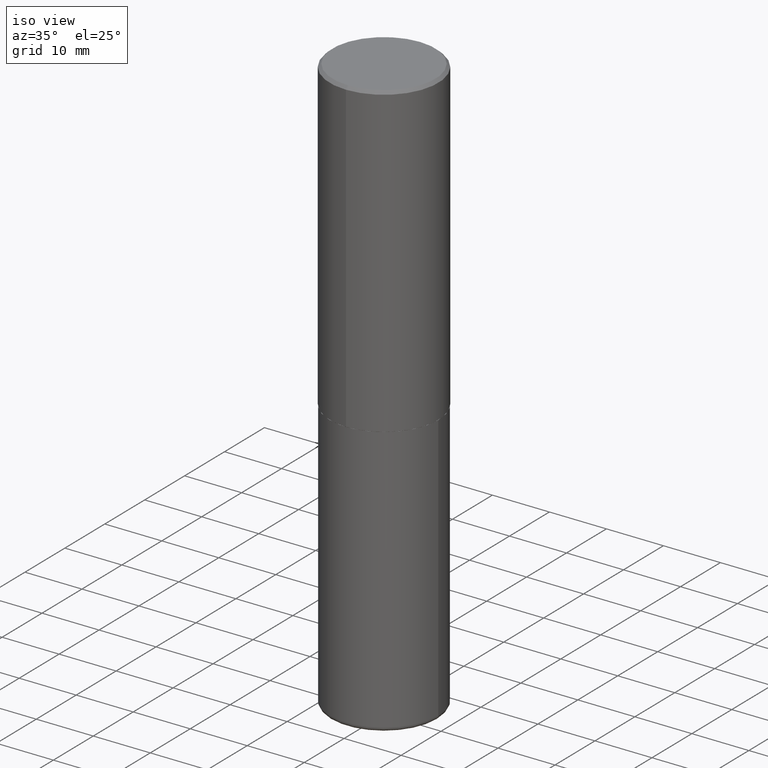
[diagram: clean part render]
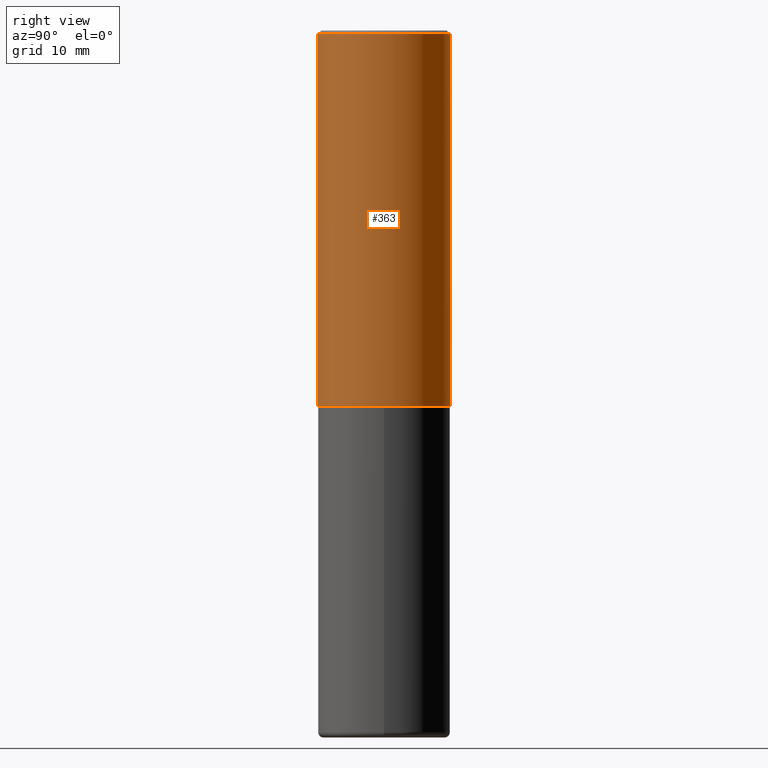
[diagram: tour spotlight — one face highlighted and labeled with its STEP entity id]
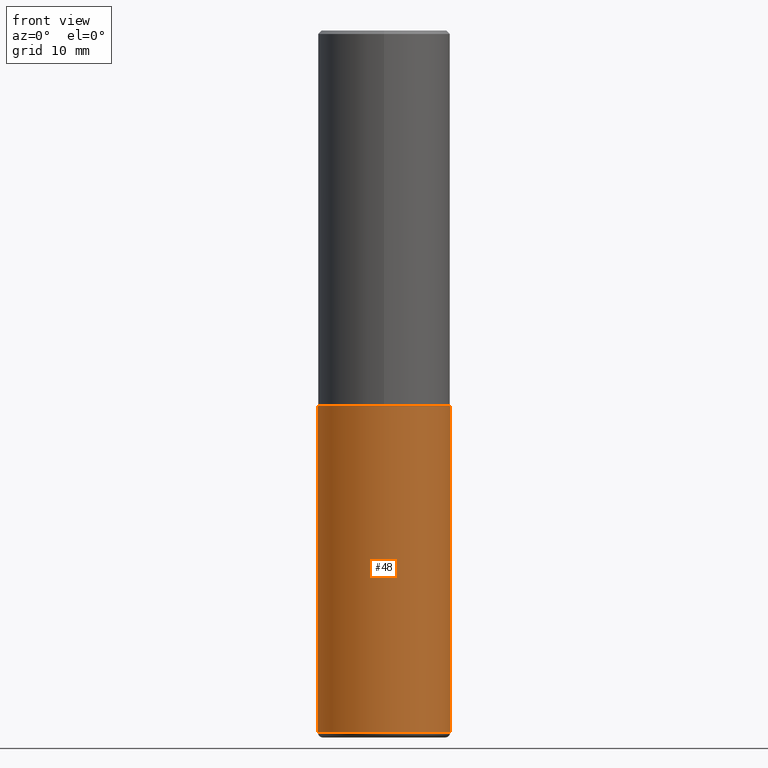
[diagram: tour spotlight — one face highlighted and labeled with its STEP entity id]
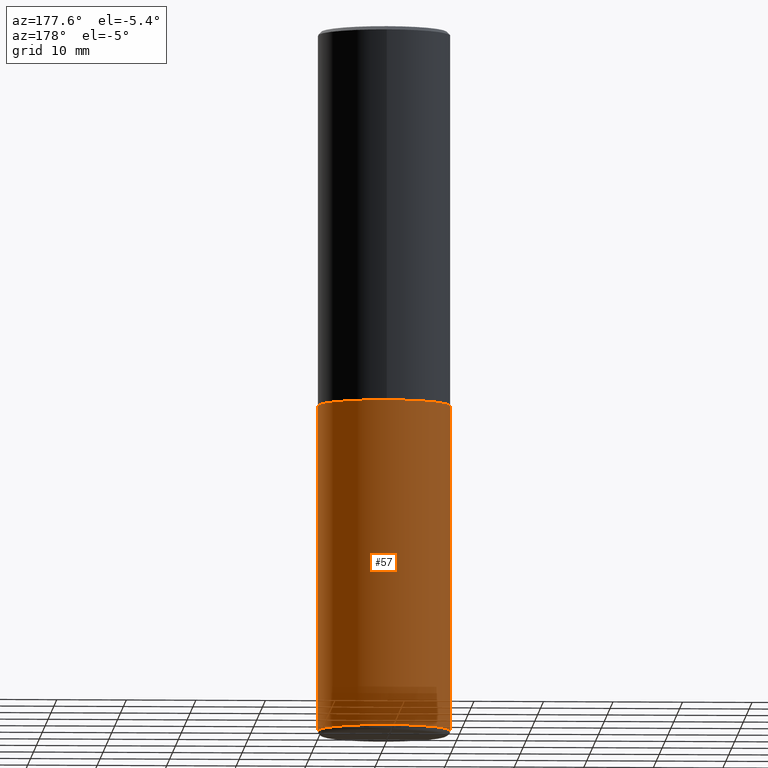
[diagram: tour spotlight — one face highlighted and labeled with its STEP entity id]
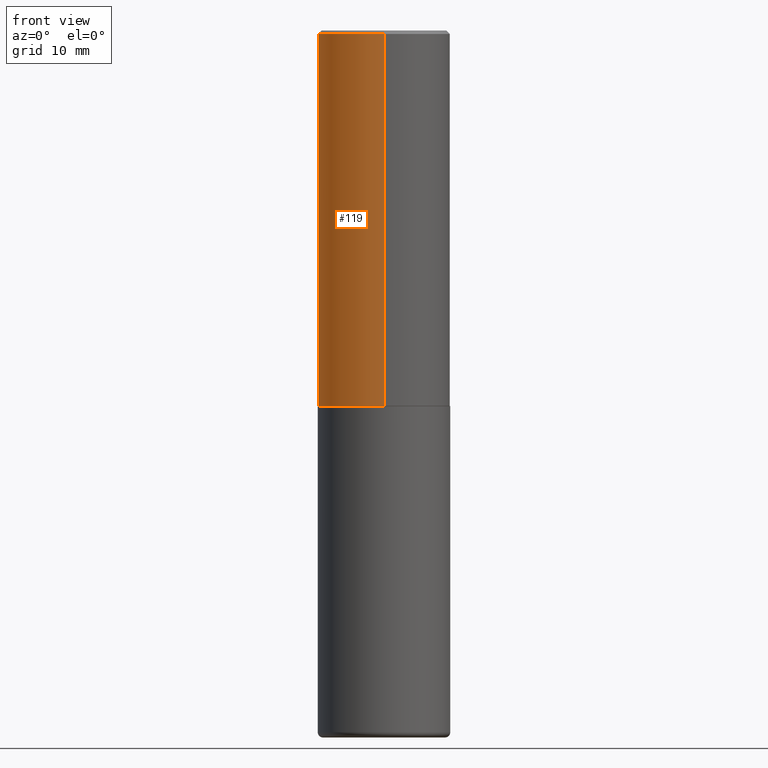
[diagram: tour spotlight — one face highlighted and labeled with its STEP entity id]
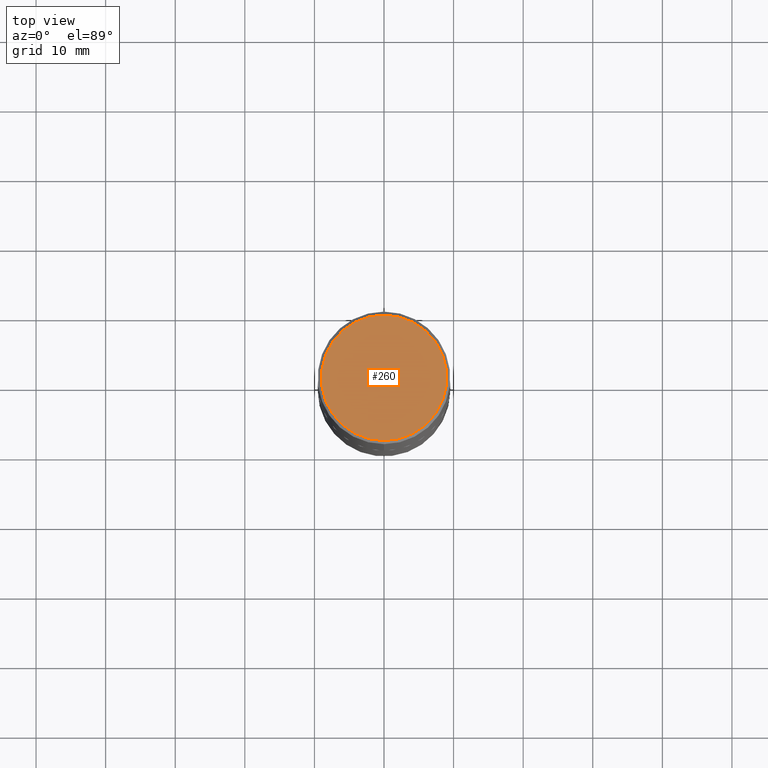
[diagram: tour spotlight — one face highlighted and labeled with its STEP entity id]
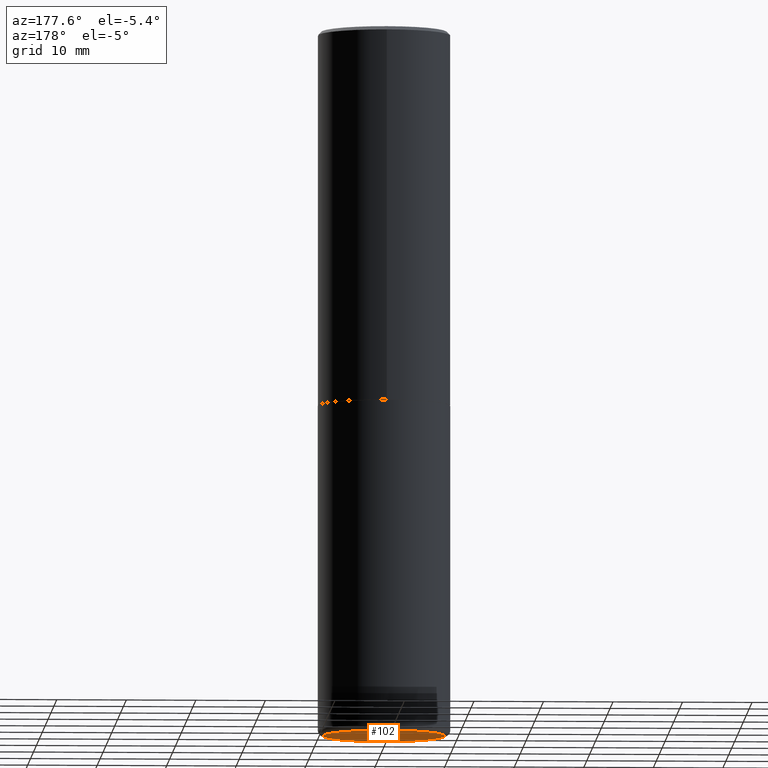
[diagram: tour spotlight — one face highlighted and labeled with its STEP entity id]
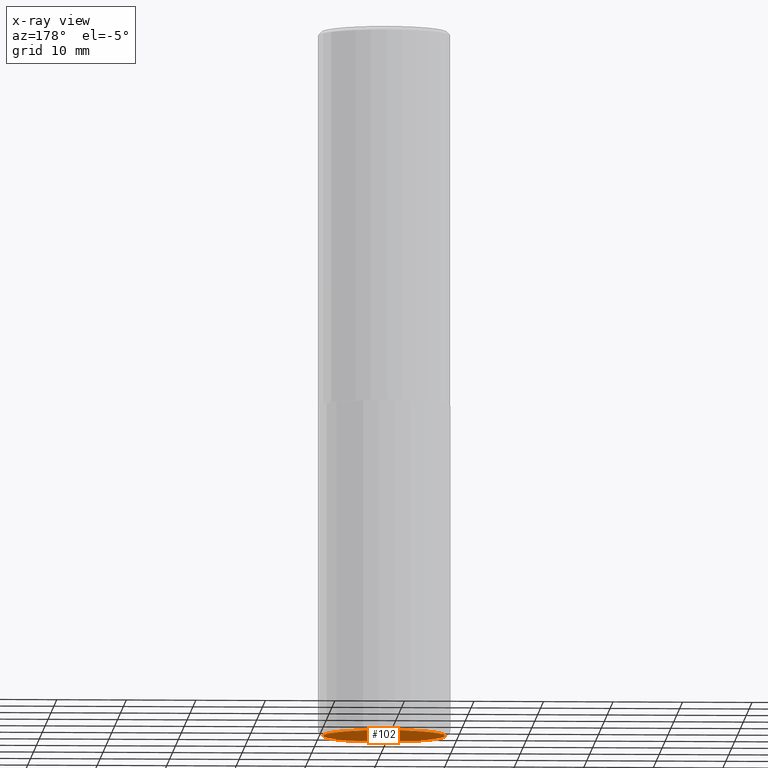
[diagram: x-ray of the same camera — body ghosted, this tour face saturated]
A machine part: a face-by-face anatomy tour. The part has 14 B-rep faces; the first image is the clean iso view, then the 6 largest visible faces are spotlighted one at a time (largest first), each with its STEP entity span.

Face 1 — right view, entity #363. In plain terms, the highlighted cylindrical surface (partial cylindrical patch) has radius 9.525 mm, axis along (-0, 0, 1).
Definition (entity closure, byte-faithful):
#6 = CYLINDRICAL_SURFACE ( 'NONE', #355, 0.3750000000000001665 ) ;
#18 = CIRCLE ( 'NONE', #131, 0.3750000000000000555 ) ;
#32 = DIRECTION ( 'NONE',  ( -6.982962677686266711E-15, -1.000000000000000000, 3.642463991552348591E-15 ) ) ;
#33 = DIRECTION ( 'NONE',  ( -2.444599841513017620E-29, 3.492725745712017802E-15, 1.000000000000000000 ) ) ;
#55 = DIRECTION ( 'NONE',  ( -2.444599841513017620E-29, 3.492725745712017802E-15, 1.000000000000000000 ) ) ;
#60 = CARTESIAN_POINT ( 'NONE',  ( 0.000000000000000000, 0.000000000000000000, 0.000000000000000000 ) ) ;
#71 = VERTEX_POINT ( 'NONE', #228 ) ;
#77 = ORIENTED_EDGE ( 'NONE', *, *, #303, .T. ) ;
#79 = CARTESIAN_POINT ( 'NONE',  ( 4.889199683026055945E-31, -6.985451491424065481E-17, -0.02000000000000008715 ) ) ;
#97 = DIRECTION ( 'NONE',  ( -2.444599841513017620E-29, 3.492725745712018196E-15, 1.000000000000000000 ) ) ;
#106 = AXIS2_PLACEMENT_3D ( 'NONE', #327, #135, #32 ) ;
#130 = LINE ( 'NONE', #164, #324 ) ;
#131 = AXIS2_PLACEMENT_3D ( 'NONE', #79, #55, #190 ) ;
#133 = LINE ( 'NONE', #264, #288 ) ;
#135 = DIRECTION ( 'NONE',  ( -2.444599841513017620E-29, 3.492725745712017802E-15, 1.000000000000000000 ) ) ;
#142 = ORIENTED_EDGE ( 'NONE', *, *, #205, .F. ) ;
#157 = ORIENTED_EDGE ( 'NONE', *, *, #270, .F. ) ;
#164 = CARTESIAN_POINT ( 'NONE',  ( 2.664535259100376486E-15, 0.3750000000000001665, -1.309772154642007415E-15 ) ) ;
#190 = DIRECTION ( 'NONE',  ( -6.982962677686265922E-15, -1.000000000000000000, 3.494488891895536035E-15 ) ) ;
#191 = CIRCLE ( 'NONE', #106, 0.3750000000000002776 ) ;
#202 = FACE_OUTER_BOUND ( 'NONE', #341, .T. ) ;
#205 = EDGE_CURVE ( 'NONE', #71, #251, #18, .T. ) ;
#228 = CARTESIAN_POINT ( 'NONE',  ( -2.572686749164323547E-15, -0.3750000000000001110, -0.01999999999999877570 ) ) ;
#233 = DIRECTION ( 'NONE',  ( -6.982962677686266711E-15, -1.000000000000000000, 3.492725745712018196E-15 ) ) ;
#234 = CARTESIAN_POINT ( 'NONE',  ( 2.618611004132350411E-15, 0.3749999999999999445, -0.02000000000000139513 ) ) ;
#246 = EDGE_CURVE ( 'NONE', #399, #251, #130, .T. ) ;
#251 = VERTEX_POINT ( 'NONE', #234 ) ;
#264 = CARTESIAN_POINT ( 'NONE',  ( -2.618611004132351200E-15, -0.3750000000000001665, 1.309772154642007415E-15 ) ) ;
#270 = EDGE_CURVE ( 'NONE', #280, #71, #133, .T. ) ;
#280 = VERTEX_POINT ( 'NONE', #297 ) ;
#288 = VECTOR ( 'NONE', #293, 39.37007874015748143 ) ;
#293 = DIRECTION ( 'NONE',  ( -2.444599841513017620E-29, 3.492725745712018196E-15, 1.000000000000000000 ) ) ;
#297 = CARTESIAN_POINT ( 'NONE',  ( -2.618611004132299924E-15, -0.3750000000000077716, -2.123999999999998334 ) ) ;
#303 = EDGE_CURVE ( 'NONE', #280, #399, #191, .T. ) ;
#306 = CARTESIAN_POINT ( 'NONE',  ( 2.664535259100402913E-15, 0.3749999999999928391, -2.124000000000000998 ) ) ;
#310 = ORIENTED_EDGE ( 'NONE', *, *, #246, .T. ) ;
#324 = VECTOR ( 'NONE', #97, 39.37007874015748143 ) ;
#327 = CARTESIAN_POINT ( 'NONE',  ( 5.192330063373648592E-29, -7.418549483892325607E-15, -2.123999999999999666 ) ) ;
#341 = EDGE_LOOP ( 'NONE', ( #77, #310, #142, #157 ) ) ;
#355 = AXIS2_PLACEMENT_3D ( 'NONE', #60, #33, #233 ) ;
#363 = ADVANCED_FACE ( 'NONE', ( #202 ), #6, .T. ) ;
#399 = VERTEX_POINT ( 'NONE', #306 ) ;

Face 2 — front view, entity #48. In plain terms, the highlighted cylindrical surface (partial cylindrical patch) has radius 9.525 mm, axis along (-0, 0, 1).
Definition (entity closure, byte-faithful):
#7 = CARTESIAN_POINT ( 'NONE',  ( -0.3749999999999999445, -1.119664565610691011E-14, -3.970000000000000195 ) ) ;
#48 = ADVANCED_FACE ( 'NONE', ( #84 ), #61, .T. ) ;
#53 = AXIS2_PLACEMENT_3D ( 'NONE', #278, #86, #76 ) ;
#58 = DIRECTION ( 'NONE',  ( -2.445468806185136597E-29, 3.491481338843145583E-15, 1.000000000000000000 ) ) ;
#59 = CARTESIAN_POINT ( 'NONE',  ( 0.3750000000000000555, -1.003800884917403364E-14, -2.125000000000000000 ) ) ;
#61 = CYLINDRICAL_SURFACE ( 'NONE', #138, 0.3750000000000000555 ) ;
#76 = DIRECTION ( 'NONE',  ( 1.000000000000000000, -6.982962677686266711E-15, 0.000000000000000000 ) ) ;
#78 = DIRECTION ( 'NONE',  ( -2.445468806185136597E-29, 3.491481338843145583E-15, 1.000000000000000000 ) ) ;
#84 = FACE_OUTER_BOUND ( 'NONE', #339, .T. ) ;
#85 = VECTOR ( 'NONE', #335, 39.37007874015748143 ) ;
#86 = DIRECTION ( 'NONE',  ( -2.445468806185136597E-29, 3.491481338843145583E-15, 1.000000000000000000 ) ) ;
#91 = AXIS2_PLACEMENT_3D ( 'NONE', #213, #78, #110 ) ;
#110 = DIRECTION ( 'NONE',  ( 1.000000000000000000, -6.982962677686266711E-15, 0.000000000000000000 ) ) ;
#138 = AXIS2_PLACEMENT_3D ( 'NONE', #320, #58, #165 ) ;
#153 = VERTEX_POINT ( 'NONE', #323 ) ;
#156 = ORIENTED_EDGE ( 'NONE', *, *, #336, .F. ) ;
#165 = DIRECTION ( 'NONE',  ( 1.000000000000000000, -6.982962677686265922E-15, 4.876176775795935793E-29 ) ) ;
#169 = VERTEX_POINT ( 'NONE', #408 ) ;
#176 = ORIENTED_EDGE ( 'NONE', *, *, #377, .T. ) ;
#189 = EDGE_CURVE ( 'NONE', #279, #169, #268, .T. ) ;
#197 = CARTESIAN_POINT ( 'NONE',  ( -0.3750000000000000555, 2.664535259100376091E-15, -1.844600658845589598E-29 ) ) ;
#213 = CARTESIAN_POINT ( 'NONE',  ( 5.196621213143415268E-29, -7.419397845041683624E-15, -2.125000000000000000 ) ) ;
#239 = ORIENTED_EDGE ( 'NONE', *, *, #189, .T. ) ;
#268 = CIRCLE ( 'NONE', #53, 0.3750000000000000555 ) ;
#278 = CARTESIAN_POINT ( 'NONE',  ( 9.708511160554992872E-29, -1.386118091520728738E-14, -3.970000000000000195 ) ) ;
#279 = VERTEX_POINT ( 'NONE', #7 ) ;
#282 = CIRCLE ( 'NONE', #91, 0.3750000000000000555 ) ;
#300 = CARTESIAN_POINT ( 'NONE',  ( 0.3750000000000000555, -2.618611004132350016E-15, 1.828566290923476203E-29 ) ) ;
#318 = VERTEX_POINT ( 'NONE', #59 ) ;
#320 = CARTESIAN_POINT ( 'NONE',  ( 0.000000000000000000, 0.000000000000000000, 0.000000000000000000 ) ) ;
#323 = CARTESIAN_POINT ( 'NONE',  ( -0.3750000000000000555, -7.975754121024110595E-15, -2.125000000000000000 ) ) ;
#328 = DIRECTION ( 'NONE',  ( -2.445468806185136877E-29, 3.491481338843145188E-15, 1.000000000000000000 ) ) ;
#335 = DIRECTION ( 'NONE',  ( -2.445468806185136877E-29, 3.491481338843145188E-15, 1.000000000000000000 ) ) ;
#336 = EDGE_CURVE ( 'NONE', #279, #153, #357, .T. ) ;
#339 = EDGE_LOOP ( 'NONE', ( #156, #239, #176, #410 ) ) ;
#357 = LINE ( 'NONE', #197, #395 ) ;
#359 = LINE ( 'NONE', #300, #85 ) ;
#377 = EDGE_CURVE ( 'NONE', #169, #318, #359, .T. ) ;
#391 = EDGE_CURVE ( 'NONE', #153, #318, #282, .T. ) ;
#395 = VECTOR ( 'NONE', #328, 39.37007874015748143 ) ;
#408 = CARTESIAN_POINT ( 'NONE',  ( 0.3749999999999999445, -1.647979191933963740E-14, -3.970000000000000195 ) ) ;
#410 = ORIENTED_EDGE ( 'NONE', *, *, #391, .F. ) ;

Face 3 — auxiliary view, entity #57. In plain terms, the highlighted cylindrical surface (partial cylindrical patch) has radius 9.525 mm, axis along (-0, 0, 1).
Definition (entity closure, byte-faithful):
#7 = CARTESIAN_POINT ( 'NONE',  ( -0.3749999999999999445, -1.119664565610691011E-14, -3.970000000000000195 ) ) ;
#9 = DIRECTION ( 'NONE',  ( -2.445468806185136597E-29, 3.491481338843145583E-15, 1.000000000000000000 ) ) ;
#26 = CYLINDRICAL_SURFACE ( 'NONE', #418, 0.3750000000000000555 ) ;
#39 = ORIENTED_EDGE ( 'NONE', *, *, #183, .T. ) ;
#57 = ADVANCED_FACE ( 'NONE', ( #192 ), #26, .T. ) ;
#59 = CARTESIAN_POINT ( 'NONE',  ( 0.3750000000000000555, -1.003800884917403364E-14, -2.125000000000000000 ) ) ;
#65 = DIRECTION ( 'NONE',  ( -2.445468806185136597E-29, 3.491481338843145583E-15, 1.000000000000000000 ) ) ;
#80 = AXIS2_PLACEMENT_3D ( 'NONE', #273, #374, #158 ) ;
#85 = VECTOR ( 'NONE', #335, 39.37007874015748143 ) ;
#122 = ORIENTED_EDGE ( 'NONE', *, *, #377, .F. ) ;
#151 = ORIENTED_EDGE ( 'NONE', *, *, #336, .T. ) ;
#153 = VERTEX_POINT ( 'NONE', #323 ) ;
#158 = DIRECTION ( 'NONE',  ( 1.000000000000000000, -6.982962677686266711E-15, 0.000000000000000000 ) ) ;
#169 = VERTEX_POINT ( 'NONE', #408 ) ;
#181 = CIRCLE ( 'NONE', #80, 0.3750000000000000555 ) ;
#183 = EDGE_CURVE ( 'NONE', #169, #279, #181, .T. ) ;
#192 = FACE_OUTER_BOUND ( 'NONE', #217, .T. ) ;
#197 = CARTESIAN_POINT ( 'NONE',  ( -0.3750000000000000555, 2.664535259100376091E-15, -1.844600658845589598E-29 ) ) ;
#217 = EDGE_LOOP ( 'NONE', ( #39, #151, #333, #122 ) ) ;
#223 = CIRCLE ( 'NONE', #276, 0.3750000000000000555 ) ;
#227 = CARTESIAN_POINT ( 'NONE',  ( 0.000000000000000000, 0.000000000000000000, 0.000000000000000000 ) ) ;
#230 = CARTESIAN_POINT ( 'NONE',  ( 5.196621213143415268E-29, -7.419397845041683624E-15, -2.125000000000000000 ) ) ;
#273 = CARTESIAN_POINT ( 'NONE',  ( 9.708511160554992872E-29, -1.386118091520728738E-14, -3.970000000000000195 ) ) ;
#276 = AXIS2_PLACEMENT_3D ( 'NONE', #230, #65, #392 ) ;
#279 = VERTEX_POINT ( 'NONE', #7 ) ;
#300 = CARTESIAN_POINT ( 'NONE',  ( 0.3750000000000000555, -2.618611004132350016E-15, 1.828566290923476203E-29 ) ) ;
#318 = VERTEX_POINT ( 'NONE', #59 ) ;
#323 = CARTESIAN_POINT ( 'NONE',  ( -0.3750000000000000555, -7.975754121024110595E-15, -2.125000000000000000 ) ) ;
#325 = EDGE_CURVE ( 'NONE', #318, #153, #223, .T. ) ;
#326 = DIRECTION ( 'NONE',  ( 1.000000000000000000, -6.982962677686265922E-15, 4.876176775795935793E-29 ) ) ;
#328 = DIRECTION ( 'NONE',  ( -2.445468806185136877E-29, 3.491481338843145188E-15, 1.000000000000000000 ) ) ;
#333 = ORIENTED_EDGE ( 'NONE', *, *, #325, .F. ) ;
#335 = DIRECTION ( 'NONE',  ( -2.445468806185136877E-29, 3.491481338843145188E-15, 1.000000000000000000 ) ) ;
#336 = EDGE_CURVE ( 'NONE', #279, #153, #357, .T. ) ;
#357 = LINE ( 'NONE', #197, #395 ) ;
#359 = LINE ( 'NONE', #300, #85 ) ;
#374 = DIRECTION ( 'NONE',  ( -2.445468806185136597E-29, 3.491481338843145583E-15, 1.000000000000000000 ) ) ;
#377 = EDGE_CURVE ( 'NONE', #169, #318, #359, .T. ) ;
#392 = DIRECTION ( 'NONE',  ( 1.000000000000000000, -6.982962677686266711E-15, 0.000000000000000000 ) ) ;
#395 = VECTOR ( 'NONE', #328, 39.37007874015748143 ) ;
#408 = CARTESIAN_POINT ( 'NONE',  ( 0.3749999999999999445, -1.647979191933963740E-14, -3.970000000000000195 ) ) ;
#418 = AXIS2_PLACEMENT_3D ( 'NONE', #227, #9, #326 ) ;

Face 4 — front view, entity #119. In plain terms, the highlighted cylindrical surface (partial cylindrical patch) has radius 9.525 mm, axis along (-0, 0, 1).
Definition (entity closure, byte-faithful):
#4 = FACE_OUTER_BOUND ( 'NONE', #178, .T. ) ;
#28 = AXIS2_PLACEMENT_3D ( 'NONE', #134, #90, #232 ) ;
#71 = VERTEX_POINT ( 'NONE', #228 ) ;
#88 = DIRECTION ( 'NONE',  ( -2.444599841513017620E-29, 3.492725745712017802E-15, 1.000000000000000000 ) ) ;
#90 = DIRECTION ( 'NONE',  ( -2.444599841513017620E-29, 3.492725745712017802E-15, 1.000000000000000000 ) ) ;
#97 = DIRECTION ( 'NONE',  ( -2.444599841513017620E-29, 3.492725745712018196E-15, 1.000000000000000000 ) ) ;
#100 = EDGE_CURVE ( 'NONE', #399, #280, #236, .T. ) ;
#108 = ORIENTED_EDGE ( 'NONE', *, *, #246, .F. ) ;
#119 = ADVANCED_FACE ( 'NONE', ( #4 ), #128, .T. ) ;
#127 = CARTESIAN_POINT ( 'NONE',  ( 4.889199683026055945E-31, -6.985451491424065481E-17, -0.02000000000000008715 ) ) ;
#128 = CYLINDRICAL_SURFACE ( 'NONE', #347, 0.3750000000000001665 ) ;
#130 = LINE ( 'NONE', #164, #324 ) ;
#133 = LINE ( 'NONE', #264, #288 ) ;
#134 = CARTESIAN_POINT ( 'NONE',  ( 5.192330063373648592E-29, -7.418549483892325607E-15, -2.123999999999999666 ) ) ;
#136 = DIRECTION ( 'NONE',  ( -6.982962677686266711E-15, -1.000000000000000000, 3.492725745712018196E-15 ) ) ;
#164 = CARTESIAN_POINT ( 'NONE',  ( 2.664535259100376486E-15, 0.3750000000000001665, -1.309772154642007415E-15 ) ) ;
#172 = ORIENTED_EDGE ( 'NONE', *, *, #100, .T. ) ;
#178 = EDGE_LOOP ( 'NONE', ( #108, #172, #409, #346 ) ) ;
#195 = EDGE_CURVE ( 'NONE', #251, #71, #376, .T. ) ;
#200 = AXIS2_PLACEMENT_3D ( 'NONE', #127, #406, #244 ) ;
#228 = CARTESIAN_POINT ( 'NONE',  ( -2.572686749164323547E-15, -0.3750000000000001110, -0.01999999999999877570 ) ) ;
#232 = DIRECTION ( 'NONE',  ( -6.982962677686266711E-15, -1.000000000000000000, 3.642463991552348591E-15 ) ) ;
#234 = CARTESIAN_POINT ( 'NONE',  ( 2.618611004132350411E-15, 0.3749999999999999445, -0.02000000000000139513 ) ) ;
#236 = CIRCLE ( 'NONE', #28, 0.3750000000000002776 ) ;
#244 = DIRECTION ( 'NONE',  ( -6.982962677686265922E-15, -1.000000000000000000, 3.494488891895536035E-15 ) ) ;
#246 = EDGE_CURVE ( 'NONE', #399, #251, #130, .T. ) ;
#251 = VERTEX_POINT ( 'NONE', #234 ) ;
#257 = CARTESIAN_POINT ( 'NONE',  ( 0.000000000000000000, 0.000000000000000000, 0.000000000000000000 ) ) ;
#264 = CARTESIAN_POINT ( 'NONE',  ( -2.618611004132351200E-15, -0.3750000000000001665, 1.309772154642007415E-15 ) ) ;
#270 = EDGE_CURVE ( 'NONE', #280, #71, #133, .T. ) ;
#280 = VERTEX_POINT ( 'NONE', #297 ) ;
#288 = VECTOR ( 'NONE', #293, 39.37007874015748143 ) ;
#293 = DIRECTION ( 'NONE',  ( -2.444599841513017620E-29, 3.492725745712018196E-15, 1.000000000000000000 ) ) ;
#297 = CARTESIAN_POINT ( 'NONE',  ( -2.618611004132299924E-15, -0.3750000000000077716, -2.123999999999998334 ) ) ;
#306 = CARTESIAN_POINT ( 'NONE',  ( 2.664535259100402913E-15, 0.3749999999999928391, -2.124000000000000998 ) ) ;
#324 = VECTOR ( 'NONE', #97, 39.37007874015748143 ) ;
#346 = ORIENTED_EDGE ( 'NONE', *, *, #195, .F. ) ;
#347 = AXIS2_PLACEMENT_3D ( 'NONE', #257, #88, #136 ) ;
#376 = CIRCLE ( 'NONE', #200, 0.3750000000000000555 ) ;
#399 = VERTEX_POINT ( 'NONE', #306 ) ;
#406 = DIRECTION ( 'NONE',  ( -2.444599841513017620E-29, 3.492725745712017802E-15, 1.000000000000000000 ) ) ;
#409 = ORIENTED_EDGE ( 'NONE', *, *, #270, .T. ) ;

Face 5 — top view, entity #260. In plain terms, the highlighted planar face has unit normal (0, -0, -1).
Definition (entity closure, byte-faithful):
#5 = DIRECTION ( 'NONE',  ( 2.444599841513016780E-29, -3.492725745712018196E-15, -1.000000000000000000 ) ) ;
#10 = DIRECTION ( 'NONE',  ( -6.982962677686266711E-15, -1.000000000000000000, 3.492725745712018196E-15 ) ) ;
#11 = VERTEX_POINT ( 'NONE', #117 ) ;
#36 = CARTESIAN_POINT ( 'NONE',  ( 3.954426510820204334E-45, -5.649892898348338006E-31, -1.617617101853660202E-16 ) ) ;
#52 = ORIENTED_EDGE ( 'NONE', *, *, #229, .T. ) ;
#62 = DIRECTION ( 'NONE',  ( -2.444599841513017620E-29, 3.492725745712017802E-15, 1.000000000000000000 ) ) ;
#94 = CARTESIAN_POINT ( 'NONE',  ( 3.954426510820204334E-45, -5.649892898348338006E-31, -1.617617101853660202E-16 ) ) ;
#105 = ORIENTED_EDGE ( 'NONE', *, *, #289, .T. ) ;
#112 = EDGE_LOOP ( 'NONE', ( #105, #52 ) ) ;
#117 = CARTESIAN_POINT ( 'NONE',  ( -2.504081769186609399E-15, -0.3550000000000001488, 1.078155929542400814E-15 ) ) ;
#137 = DIRECTION ( 'NONE',  ( 6.982962677686265922E-15, 1.000000000000000000, -3.492725745712018196E-15 ) ) ;
#161 = FACE_OUTER_BOUND ( 'NONE', #112, .T. ) ;
#162 = CARTESIAN_POINT ( 'NONE',  ( 2.478951750578625787E-15, 0.3550000000000001488, -1.320798494820450091E-15 ) ) ;
#168 = DIRECTION ( 'NONE',  ( -2.444599841513017620E-29, 3.492725745712017802E-15, 1.000000000000000000 ) ) ;
#199 = DIRECTION ( 'NONE',  ( -6.982962677686266711E-15, -1.000000000000000000, 3.492725745712018196E-15 ) ) ;
#229 = EDGE_CURVE ( 'NONE', #11, #252, #248, .T. ) ;
#248 = CIRCLE ( 'NONE', #402, 0.3550000000000001488 ) ;
#252 = VERTEX_POINT ( 'NONE', #332 ) ;
#260 = ADVANCED_FACE ( 'NONE', ( #161 ), #389, .F. ) ;
#289 = EDGE_CURVE ( 'NONE', #252, #11, #390, .T. ) ;
#294 = AXIS2_PLACEMENT_3D ( 'NONE', #36, #168, #10 ) ;
#317 = AXIS2_PLACEMENT_3D ( 'NONE', #162, #5, #137 ) ;
#332 = CARTESIAN_POINT ( 'NONE',  ( 2.548781377355488296E-15, 0.3550000000000001488, -1.401679349913132854E-15 ) ) ;
#389 = PLANE ( 'NONE',  #317 ) ;
#390 = CIRCLE ( 'NONE', #294, 0.3550000000000001488 ) ;
#402 = AXIS2_PLACEMENT_3D ( 'NONE', #94, #62, #199 ) ;

Face 6 — auxiliary view, entity #102. An x-ray twin of the same camera follows (body ghosted, this face saturated) — the face is partly hidden behind the body. In plain terms, the highlighted planar face has unit normal (0, -0, -1).
Definition (entity closure, byte-faithful):
#1 = AXIS2_PLACEMENT_3D ( 'NONE', #12, #267, #354 ) ;
#12 = CARTESIAN_POINT ( 'NONE',  ( 9.781875224740546387E-29, -1.396592535537258233E-14, -4.000000000000000000 ) ) ;
#35 = CIRCLE ( 'NONE', #1, 0.3450000000000000289 ) ;
#47 = ORIENTED_EDGE ( 'NONE', *, *, #266, .F. ) ;
#87 = DIRECTION ( 'NONE',  ( -2.445468806185136597E-29, 3.491481338843145583E-15, 1.000000000000000000 ) ) ;
#102 = ADVANCED_FACE ( 'NONE', ( #198 ), #417, .T. ) ;
#111 = EDGE_CURVE ( 'NONE', #415, #275, #403, .T. ) ;
#126 = CARTESIAN_POINT ( 'NONE',  ( 9.781875224740546387E-29, -1.396592535537258233E-14, -4.000000000000000000 ) ) ;
#146 = AXIS2_PLACEMENT_3D ( 'NONE', #383, #87, #160 ) ;
#160 = DIRECTION ( 'NONE',  ( 1.000000000000000000, -6.982962677686267499E-15, 0.000000000000000000 ) ) ;
#167 = AXIS2_PLACEMENT_3D ( 'NONE', #126, #255, #322 ) ;
#198 = FACE_OUTER_BOUND ( 'NONE', #220, .T. ) ;
#220 = EDGE_LOOP ( 'NONE', ( #307, #47 ) ) ;
#255 = DIRECTION ( 'NONE',  ( 2.438088387897960049E-29, -3.491481338843145188E-15, -1.000000000000000000 ) ) ;
#266 = EDGE_CURVE ( 'NONE', #275, #415, #35, .T. ) ;
#267 = DIRECTION ( 'NONE',  ( -2.445468806185136597E-29, 3.491481338843145583E-15, 1.000000000000000000 ) ) ;
#275 = VERTEX_POINT ( 'NONE', #329 ) ;
#307 = ORIENTED_EDGE ( 'NONE', *, *, #111, .F. ) ;
#322 = DIRECTION ( 'NONE',  ( -1.000000000000000000, 6.982962677686265922E-15, -4.876176775795935793E-29 ) ) ;
#329 = CARTESIAN_POINT ( 'NONE',  ( -0.3450000000000000289, -1.135559928655357428E-14, -4.000000000000000000 ) ) ;
#354 = DIRECTION ( 'NONE',  ( 1.000000000000000000, -6.982962677686267499E-15, 0.000000000000000000 ) ) ;
#367 = CARTESIAN_POINT ( 'NONE',  ( 0.3450000000000000289, -1.637504747917434403E-14, -4.000000000000000000 ) ) ;
#383 = CARTESIAN_POINT ( 'NONE',  ( 9.781875224740546387E-29, -1.396592535537258233E-14, -4.000000000000000000 ) ) ;
#403 = CIRCLE ( 'NONE', #146, 0.3450000000000000289 ) ;
#415 = VERTEX_POINT ( 'NONE', #367 ) ;
#417 = PLANE ( 'NONE',  #167 ) ;